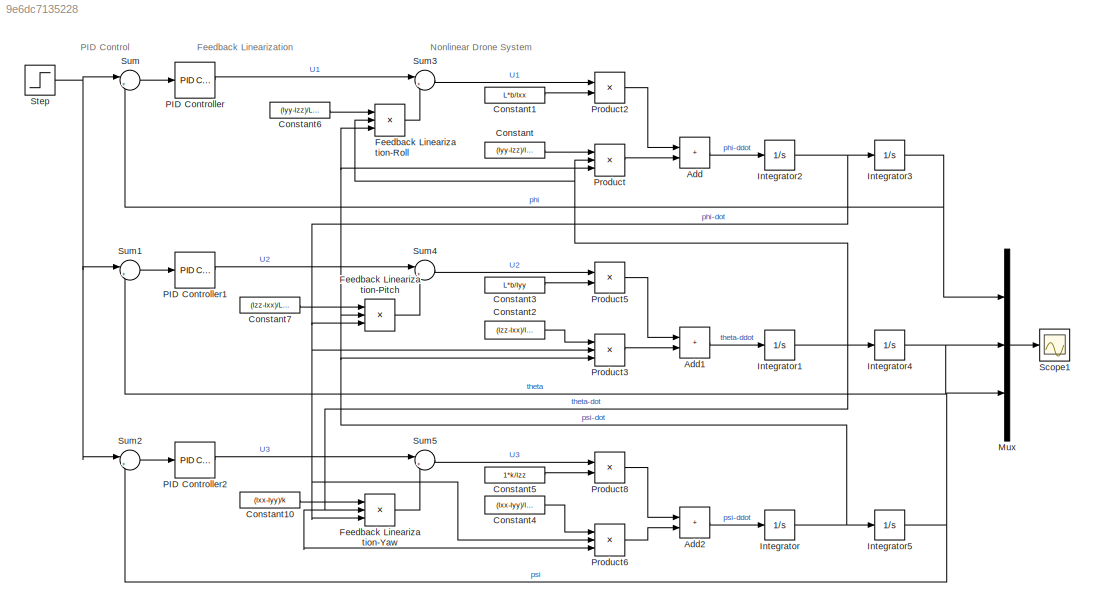
MODEL slx_9e6dc7135228
KIND model
CONFIG AbsTol = auto
CONFIG EnableMultiTasking = off
CONFIG FixedStep = auto
CONFIG MaxStep = auto
CONFIG MinStep = auto
CONFIG RelTol = 1e-3
CONFIG SampleTimeConstraint = Unconstrained
CONFIG Solver = VariableStepAuto
CONFIG SolverName = VariableStepAuto
CONFIG StartTime = 0.0
CONFIG StopTime = t
BLOCK [Sum] Add
  IconShape = rectangular
  Ports = [2, 1]
BLOCK [Sum] Add1
  IconShape = rectangular
  Ports = [2, 1]
BLOCK [Sum] Add2
  IconShape = rectangular
  Ports = [2, 1]
BLOCK [Constant] Constant
  SampleTime = 0
  Value = (Iyy-Izz)/Ixx
BLOCK [Constant] Constant1
  SampleTime = 0
  Value = L*b/Ixx
BLOCK [Constant] Constant10
  SampleTime = 0
  Value = (Ixx-Iyy)/k
BLOCK [Constant] Constant2
  SampleTime = 0
  Value = (Izz-Ixx)/Iyy
BLOCK [Constant] Constant3
  SampleTime = 0
  Value = L*b/Iyy
BLOCK [Constant] Constant4
  SampleTime = 0
  Value = (Ixx-Iyy)/Izz
BLOCK [Constant] Constant5
  SampleTime = 0
  Value = 1*k/Izz
BLOCK [Constant] Constant6
  SampleTime = 0
  Value = (Iyy-Izz)/L/b
BLOCK [Constant] Constant7
  SampleTime = 0
  Value = (Izz-Ixx)/L/b
BLOCK [Product] Feedback Linearization-Pitch
  Inputs = 3
  Ports = [3, 1]
BLOCK [Product] Feedback Linearization-Roll
  Inputs = 3
  Ports = [3, 1]
BLOCK [Product] Feedback Linearization-Yaw
  Inputs = 3
  Ports = [3, 1]
BLOCK [Integrator] Integrator
  Ports = [1, 1]
BLOCK [Integrator] Integrator1
  Ports = [1, 1]
BLOCK [Integrator] Integrator2
  Ports = [1, 1]
BLOCK [Integrator] Integrator3
  InitialCondition = deg2rad(roll0)
  Ports = [1, 1]
BLOCK [Integrator] Integrator4
  InitialCondition = deg2rad(pitch0)
  Ports = [1, 1]
BLOCK [Integrator] Integrator5
  InitialCondition = deg2rad(yaw0)
  Ports = [1, 1]
BLOCK [Mux] Mux
  DisplayOption = bar
  Inputs = 3
  Ports = [3, 1]
BLOCK [Reference] PID Controller  REF=simulink/Continuous/PID Controller
  Ports = [1, 1]
  SourceBlock = simulink/Continuous/PID Controller
  SourceProductBaseCode = SL
  SourceType = PID 1dof
BLOCK [Reference] PID Controller1  REF=simulink/Continuous/PID Controller
  Ports = [1, 1]
  SourceBlock = simulink/Continuous/PID Controller
  SourceProductBaseCode = SL
  SourceType = PID 1dof
BLOCK [Reference] PID Controller2  REF=simulink/Continuous/PID Controller
  Ports = [1, 1]
  SourceBlock = simulink/Continuous/PID Controller
  SourceProductBaseCode = SL
  SourceType = PID 1dof
BLOCK [Product] Product
  Inputs = 3
  Ports = [3, 1]
BLOCK [Product] Product2
  Ports = [2, 1]
BLOCK [Product] Product3
  Inputs = 3
  Ports = [3, 1]
BLOCK [Product] Product5
  Ports = [2, 1]
BLOCK [Product] Product6
  Inputs = 3
  Ports = [3, 1]
BLOCK [Product] Product8
  Ports = [2, 1]
BLOCK [Scope] Scope1
  Floating = off
  NumInputPorts = 1
  Ports = [1]
  ScopeSpecificationString = Simulink.scopes.TimeScopeBlockCfg('CurrentConfiguration', extmgr.ConfigurationSet(extmgr.Configuration('Core','General UI',true),extmgr.Configuration('Core','Source UI',true),extmgr.Configuration('Sources','WiredSimulink',true,'DataLoggingVariableName','RPY','DataLogging',true,'DataLoggingSaveFormat','Array'),extmgr.Configuration('Visuals','Time Domain',true,'SerializedDisplays',{struct('MinYLimRe...<+1496ch>
BLOCK [Step] Step
  After = 0
  SampleTime = 0
  Time = 0
BLOCK [Sum] Sum
  Inputs = |+-
  Ports = [2, 1]
BLOCK [Sum] Sum1
  Inputs = |+-
  Ports = [2, 1]
BLOCK [Sum] Sum2
  Inputs = |+-
  Ports = [2, 1]
BLOCK [Sum] Sum3
  Inputs = |+-
  Ports = [2, 1]
BLOCK [Sum] Sum4
  Inputs = |+-
  Ports = [2, 1]
BLOCK [Sum] Sum5
  Inputs = |+-
  Ports = [2, 1]
ANNOTATION (root): Feedback Linearization
ANNOTATION (root): Nonlinear Drone System
ANNOTATION (root): PID Control
LINE Add1:1 -> Integrator1:1
LINE Add2:1 -> Integrator:1
LINE Add:1 -> Integrator2:1
LINE Constant10:1 -> Feedback Linearization-Yaw:1
LINE Constant1:1 -> Product2:2
LINE Constant2:1 -> Product3:1
LINE Constant3:1 -> Product5:2
LINE Constant4:1 -> Product6:1
LINE Constant5:1 -> Product8:2
LINE Constant6:1 -> Feedback Linearization-Roll:1
LINE Constant7:1 -> Feedback Linearization-Pitch:1
LINE Constant:1 -> Product:1
LINE Feedback Linearization-Pitch:1 -> Sum4:2
LINE Feedback Linearization-Roll:1 -> Sum3:2
LINE Feedback Linearization-Yaw:1 -> Sum5:2
NET Integrator1:1 -> Feedback Linearization-Roll:2, Feedback Linearization-Yaw:2, Integrator4:1, Product6:3, Product:2
NET Integrator2:1 -> Feedback Linearization-Pitch:3, Feedback Linearization-Yaw:3, Integrator3:1, Product3:2, Product6:2
NET Integrator3:1 -> Mux:1, Sum:2
NET Integrator4:1 -> Mux:2, Sum1:2
NET Integrator5:1 -> Mux:3, Sum2:2
NET Integrator:1 -> Feedback Linearization-Pitch:2, Feedback Linearization-Roll:3, Integrator5:1, Product3:3, Product:3
LINE Mux:1 -> Scope1:1
LINE PID Controller1:1 -> Sum4:1
LINE PID Controller2:1 -> Sum5:1
LINE PID Controller:1 -> Sum3:1
LINE Product2:1 -> Add:1
LINE Product3:1 -> Add1:2
LINE Product5:1 -> Add1:1
LINE Product6:1 -> Add2:2
LINE Product8:1 -> Add2:1
LINE Product:1 -> Add:2
NET Step:1 -> Sum1:1, Sum2:1, Sum:1
LINE Sum1:1 -> PID Controller1:1
LINE Sum2:1 -> PID Controller2:1
LINE Sum3:1 -> Product2:1
LINE Sum4:1 -> Product5:1
LINE Sum5:1 -> Product8:1
LINE Sum:1 -> PID Controller:1
note: NET lines group one-source signal fan-out (src -> all destinations, sorted); 1:1 wires keep LINE
